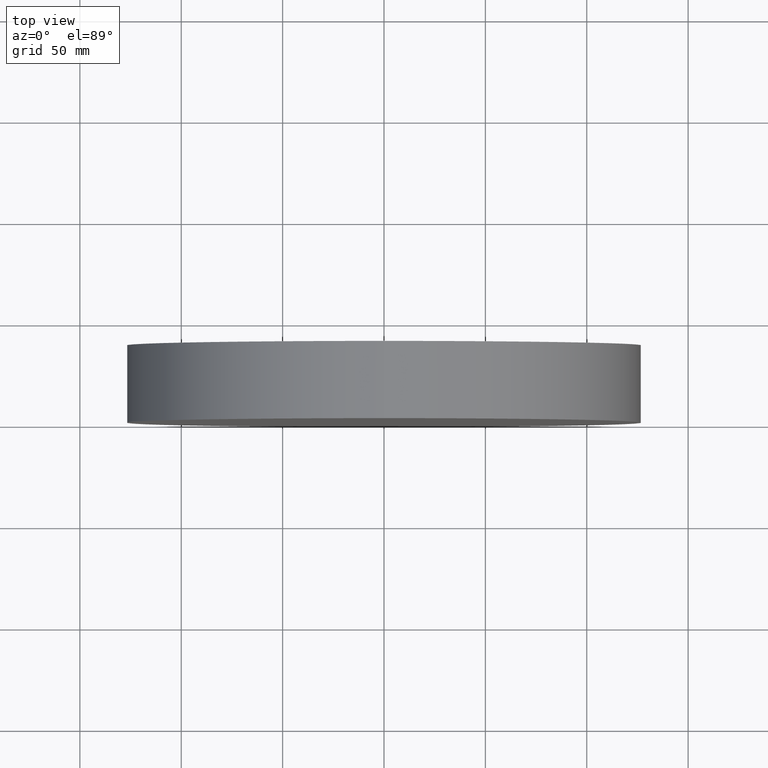
[diagram: clean part render]
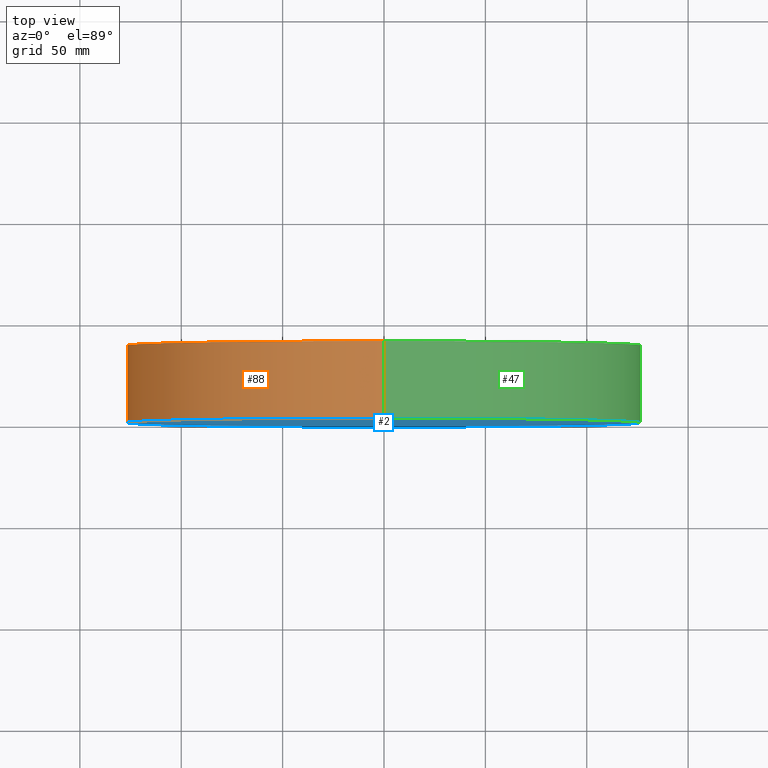
[diagram: same view with three faces highlighted in distinct colors, each labeled with its STEP entity id]
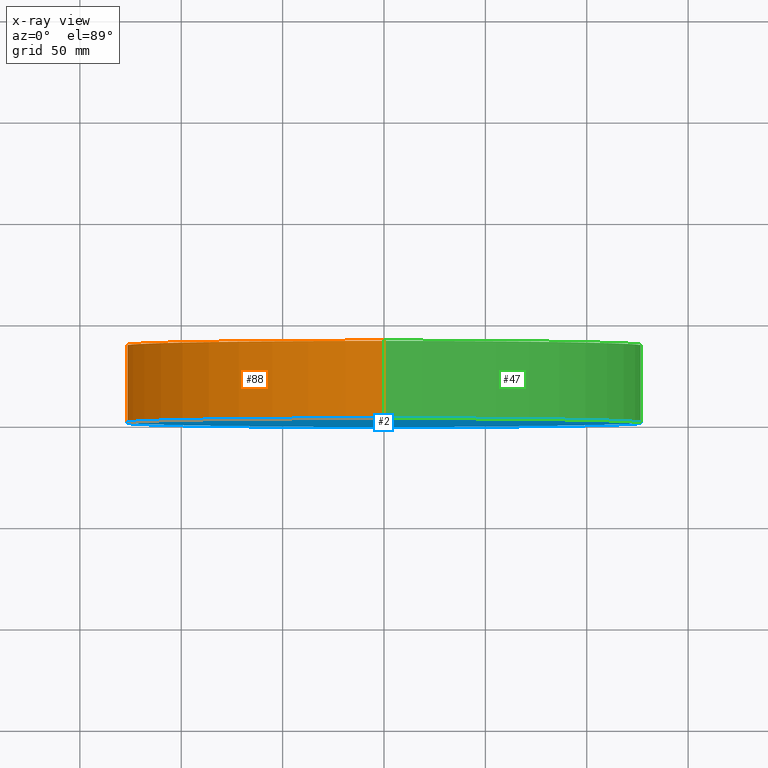
[diagram: x-ray of the same camera — body ghosted, the three highlighted faces saturated]
A machine part, top view with three faces highlighted in distinct colors.
The next image is the same camera in x-ray (body ghosted, the three faces saturated) — at least one of them is partly hidden behind the body in this view.
Their STEP definitions:

[orange] entity #88 — the highlighted cylindrical surface (partial cylindrical patch) has radius 127 mm, axis along (-0, -1, -0).
#4 = ORIENTED_EDGE ( 'NONE', *, *, #82, .T. ) ;
#5 = CIRCLE ( 'NONE', #74, 127.0000000000000000 ) ;
#7 = ORIENTED_EDGE ( 'NONE', *, *, #90, .T. ) ;
#11 = CARTESIAN_POINT ( 'NONE',  ( 0.0000000000000000000, 0.0000000000000000000, 0.0000000000000000000 ) ) ;
#16 = DIRECTION ( 'NONE',  ( 0.0000000000000000000, 0.0000000000000000000, 1.000000000000000000 ) ) ;
#18 = CARTESIAN_POINT ( 'NONE',  ( 1.555301434917138300E-014, 38.10000000000000100, 127.0000000000000000 ) ) ;
#23 = VERTEX_POINT ( 'NONE', #54 ) ;
#24 = EDGE_CURVE ( 'NONE', #23, #114, #67, .T. ) ;
#26 = VECTOR ( 'NONE', #50, 1000.000000000000000 ) ;
#29 = CARTESIAN_POINT ( 'NONE',  ( 0.0000000000000000000, 38.10000000000000100, 0.0000000000000000000 ) ) ;
#32 = LINE ( 'NONE', #40, #26 ) ;
#37 = CIRCLE ( 'NONE', #87, 127.0000000000000000 ) ;
#40 = CARTESIAN_POINT ( 'NONE',  ( 0.0000000000000000000, 38.10000000000000100, -127.0000000000000000 ) ) ;
#48 = CYLINDRICAL_SURFACE ( 'NONE', #98, 127.0000000000000000 ) ;
#50 = DIRECTION ( 'NONE',  ( -0.0000000000000000000, -1.000000000000000000, -0.0000000000000000000 ) ) ;
#51 = EDGE_CURVE ( 'NONE', #105, #23, #5, .T. ) ;
#54 = CARTESIAN_POINT ( 'NONE',  ( 1.555301434917138300E-014, 38.10000000000000100, 127.0000000000000000 ) ) ;
#59 = DIRECTION ( 'NONE',  ( 0.0000000000000000000, 0.0000000000000000000, -1.000000000000000000 ) ) ;
#62 = CARTESIAN_POINT ( 'NONE',  ( 1.555301434917138300E-014, 0.0000000000000000000, 127.0000000000000000 ) ) ;
#67 = LINE ( 'NONE', #18, #140 ) ;
#70 = DIRECTION ( 'NONE',  ( 0.0000000000000000000, 1.000000000000000000, 0.0000000000000000000 ) ) ;
#72 = ORIENTED_EDGE ( 'NONE', *, *, #24, .F. ) ;
#74 = AXIS2_PLACEMENT_3D ( 'NONE', #29, #94, #16 ) ;
#75 = CARTESIAN_POINT ( 'NONE',  ( 0.0000000000000000000, 38.10000000000000100, -127.0000000000000000 ) ) ;
#79 = DIRECTION ( 'NONE',  ( -0.0000000000000000000, -1.000000000000000000, -0.0000000000000000000 ) ) ;
#82 = EDGE_CURVE ( 'NONE', #105, #130, #32, .T. ) ;
#84 = CARTESIAN_POINT ( 'NONE',  ( 0.0000000000000000000, 0.0000000000000000000, -127.0000000000000000 ) ) ;
#87 = AXIS2_PLACEMENT_3D ( 'NONE', #11, #70, #109 ) ;
#88 = ADVANCED_FACE ( 'NONE', ( #132 ), #48, .T. ) ;
#90 = EDGE_CURVE ( 'NONE', #130, #114, #37, .T. ) ;
#94 = DIRECTION ( 'NONE',  ( 0.0000000000000000000, 1.000000000000000000, 0.0000000000000000000 ) ) ;
#96 = ORIENTED_EDGE ( 'NONE', *, *, #51, .F. ) ;
#98 = AXIS2_PLACEMENT_3D ( 'NONE', #124, #79, #59 ) ;
#99 = EDGE_LOOP ( 'NONE', ( #72, #96, #4, #7 ) ) ;
#105 = VERTEX_POINT ( 'NONE', #75 ) ;
#109 = DIRECTION ( 'NONE',  ( 0.0000000000000000000, 0.0000000000000000000, 1.000000000000000000 ) ) ;
#114 = VERTEX_POINT ( 'NONE', #62 ) ;
#118 = DIRECTION ( 'NONE',  ( -0.0000000000000000000, -1.000000000000000000, -0.0000000000000000000 ) ) ;
#124 = CARTESIAN_POINT ( 'NONE',  ( 0.0000000000000000000, 38.10000000000000100, 0.0000000000000000000 ) ) ;
#130 = VERTEX_POINT ( 'NONE', #84 ) ;
#132 = FACE_OUTER_BOUND ( 'NONE', #99, .T. ) ;
#140 = VECTOR ( 'NONE', #118, 1000.000000000000000 ) ;

[blue] entity #2 — the highlighted planar face has unit normal (0, 1, 0).
#1 = FACE_OUTER_BOUND ( 'NONE', #119, .T. ) ;
#2 = ADVANCED_FACE ( 'NONE', ( #1 ), #73, .F. ) ;
#3 = EDGE_CURVE ( 'NONE', #114, #130, #80, .T. ) ;
#10 = ORIENTED_EDGE ( 'NONE', *, *, #90, .F. ) ;
#11 = CARTESIAN_POINT ( 'NONE',  ( 0.0000000000000000000, 0.0000000000000000000, 0.0000000000000000000 ) ) ;
#17 = CARTESIAN_POINT ( 'NONE',  ( 0.0000000000000000000, 0.0000000000000000000, 0.0000000000000000000 ) ) ;
#37 = CIRCLE ( 'NONE', #87, 127.0000000000000000 ) ;
#38 = DIRECTION ( 'NONE',  ( 0.0000000000000000000, -0.0000000000000000000, 1.000000000000000000 ) ) ;
#49 = AXIS2_PLACEMENT_3D ( 'NONE', #17, #97, #95 ) ;
#62 = CARTESIAN_POINT ( 'NONE',  ( 1.555301434917138300E-014, 0.0000000000000000000, 127.0000000000000000 ) ) ;
#70 = DIRECTION ( 'NONE',  ( 0.0000000000000000000, 1.000000000000000000, 0.0000000000000000000 ) ) ;
#73 = PLANE ( 'NONE',  #113 ) ;
#76 = ORIENTED_EDGE ( 'NONE', *, *, #3, .F. ) ;
#80 = CIRCLE ( 'NONE', #49, 127.0000000000000000 ) ;
#84 = CARTESIAN_POINT ( 'NONE',  ( 0.0000000000000000000, 0.0000000000000000000, -127.0000000000000000 ) ) ;
#87 = AXIS2_PLACEMENT_3D ( 'NONE', #11, #70, #109 ) ;
#89 = DIRECTION ( 'NONE',  ( 0.0000000000000000000, 1.000000000000000000, 0.0000000000000000000 ) ) ;
#90 = EDGE_CURVE ( 'NONE', #130, #114, #37, .T. ) ;
#95 = DIRECTION ( 'NONE',  ( 0.0000000000000000000, 0.0000000000000000000, 1.000000000000000000 ) ) ;
#97 = DIRECTION ( 'NONE',  ( 0.0000000000000000000, 1.000000000000000000, 0.0000000000000000000 ) ) ;
#109 = DIRECTION ( 'NONE',  ( 0.0000000000000000000, 0.0000000000000000000, 1.000000000000000000 ) ) ;
#113 = AXIS2_PLACEMENT_3D ( 'NONE', #138, #89, #38 ) ;
#114 = VERTEX_POINT ( 'NONE', #62 ) ;
#119 = EDGE_LOOP ( 'NONE', ( #10, #76 ) ) ;
#130 = VERTEX_POINT ( 'NONE', #84 ) ;
#138 = CARTESIAN_POINT ( 'NONE',  ( 0.0000000000000000000, 0.0000000000000000000, 0.0000000000000000000 ) ) ;

[green] entity #47 — the highlighted cylindrical surface (partial cylindrical patch) has radius 127 mm, axis along (-0, -1, -0).
#3 = EDGE_CURVE ( 'NONE', #114, #130, #80, .T. ) ;
#9 = DIRECTION ( 'NONE',  ( 0.0000000000000000000, 1.000000000000000000, 0.0000000000000000000 ) ) ;
#13 = EDGE_CURVE ( 'NONE', #23, #105, #86, .T. ) ;
#17 = CARTESIAN_POINT ( 'NONE',  ( 0.0000000000000000000, 0.0000000000000000000, 0.0000000000000000000 ) ) ;
#18 = CARTESIAN_POINT ( 'NONE',  ( 1.555301434917138300E-014, 38.10000000000000100, 127.0000000000000000 ) ) ;
#20 = DIRECTION ( 'NONE',  ( 0.0000000000000000000, 0.0000000000000000000, -1.000000000000000000 ) ) ;
#23 = VERTEX_POINT ( 'NONE', #54 ) ;
#24 = EDGE_CURVE ( 'NONE', #23, #114, #67, .T. ) ;
#26 = VECTOR ( 'NONE', #50, 1000.000000000000000 ) ;
#32 = LINE ( 'NONE', #40, #26 ) ;
#34 = AXIS2_PLACEMENT_3D ( 'NONE', #123, #9, #137 ) ;
#40 = CARTESIAN_POINT ( 'NONE',  ( 0.0000000000000000000, 38.10000000000000100, -127.0000000000000000 ) ) ;
#47 = ADVANCED_FACE ( 'NONE', ( #139 ), #81, .T. ) ;
#49 = AXIS2_PLACEMENT_3D ( 'NONE', #17, #97, #95 ) ;
#50 = DIRECTION ( 'NONE',  ( -0.0000000000000000000, -1.000000000000000000, -0.0000000000000000000 ) ) ;
#54 = CARTESIAN_POINT ( 'NONE',  ( 1.555301434917138300E-014, 38.10000000000000100, 127.0000000000000000 ) ) ;
#62 = CARTESIAN_POINT ( 'NONE',  ( 1.555301434917138300E-014, 0.0000000000000000000, 127.0000000000000000 ) ) ;
#67 = LINE ( 'NONE', #18, #140 ) ;
#68 = ORIENTED_EDGE ( 'NONE', *, *, #3, .T. ) ;
#69 = ORIENTED_EDGE ( 'NONE', *, *, #24, .T. ) ;
#75 = CARTESIAN_POINT ( 'NONE',  ( 0.0000000000000000000, 38.10000000000000100, -127.0000000000000000 ) ) ;
#78 = AXIS2_PLACEMENT_3D ( 'NONE', #85, #102, #20 ) ;
#80 = CIRCLE ( 'NONE', #49, 127.0000000000000000 ) ;
#81 = CYLINDRICAL_SURFACE ( 'NONE', #78, 127.0000000000000000 ) ;
#82 = EDGE_CURVE ( 'NONE', #105, #130, #32, .T. ) ;
#84 = CARTESIAN_POINT ( 'NONE',  ( 0.0000000000000000000, 0.0000000000000000000, -127.0000000000000000 ) ) ;
#85 = CARTESIAN_POINT ( 'NONE',  ( 0.0000000000000000000, 38.10000000000000100, 0.0000000000000000000 ) ) ;
#86 = CIRCLE ( 'NONE', #34, 127.0000000000000000 ) ;
#95 = DIRECTION ( 'NONE',  ( 0.0000000000000000000, 0.0000000000000000000, 1.000000000000000000 ) ) ;
#97 = DIRECTION ( 'NONE',  ( 0.0000000000000000000, 1.000000000000000000, 0.0000000000000000000 ) ) ;
#101 = ORIENTED_EDGE ( 'NONE', *, *, #13, .F. ) ;
#102 = DIRECTION ( 'NONE',  ( -0.0000000000000000000, -1.000000000000000000, -0.0000000000000000000 ) ) ;
#105 = VERTEX_POINT ( 'NONE', #75 ) ;
#114 = VERTEX_POINT ( 'NONE', #62 ) ;
#116 = EDGE_LOOP ( 'NONE', ( #101, #69, #68, #127 ) ) ;
#118 = DIRECTION ( 'NONE',  ( -0.0000000000000000000, -1.000000000000000000, -0.0000000000000000000 ) ) ;
#123 = CARTESIAN_POINT ( 'NONE',  ( 0.0000000000000000000, 38.10000000000000100, 0.0000000000000000000 ) ) ;
#127 = ORIENTED_EDGE ( 'NONE', *, *, #82, .F. ) ;
#130 = VERTEX_POINT ( 'NONE', #84 ) ;
#137 = DIRECTION ( 'NONE',  ( 0.0000000000000000000, 0.0000000000000000000, 1.000000000000000000 ) ) ;
#139 = FACE_OUTER_BOUND ( 'NONE', #116, .T. ) ;
#140 = VECTOR ( 'NONE', #118, 1000.000000000000000 ) ;